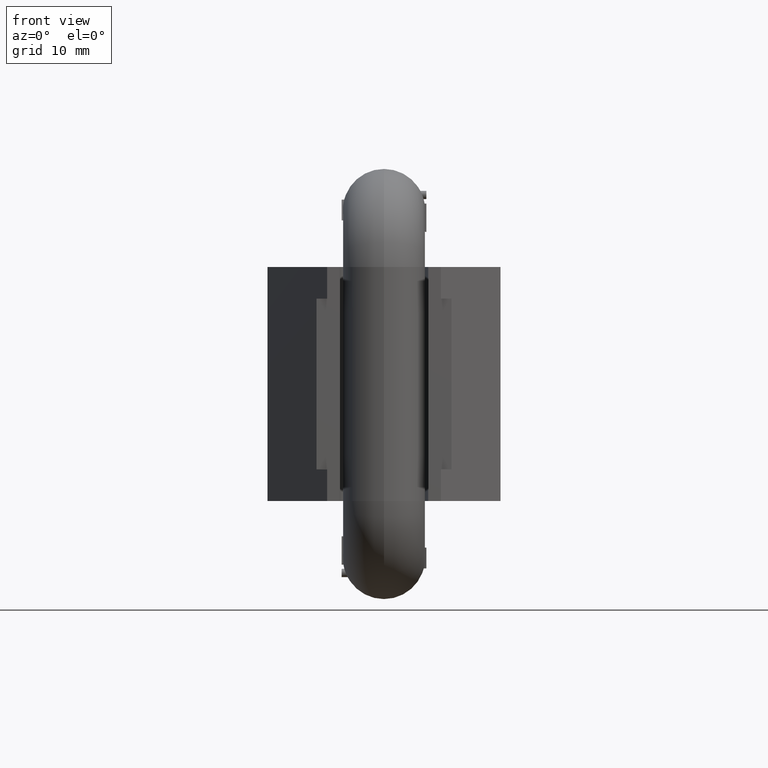
[diagram: clean part render]
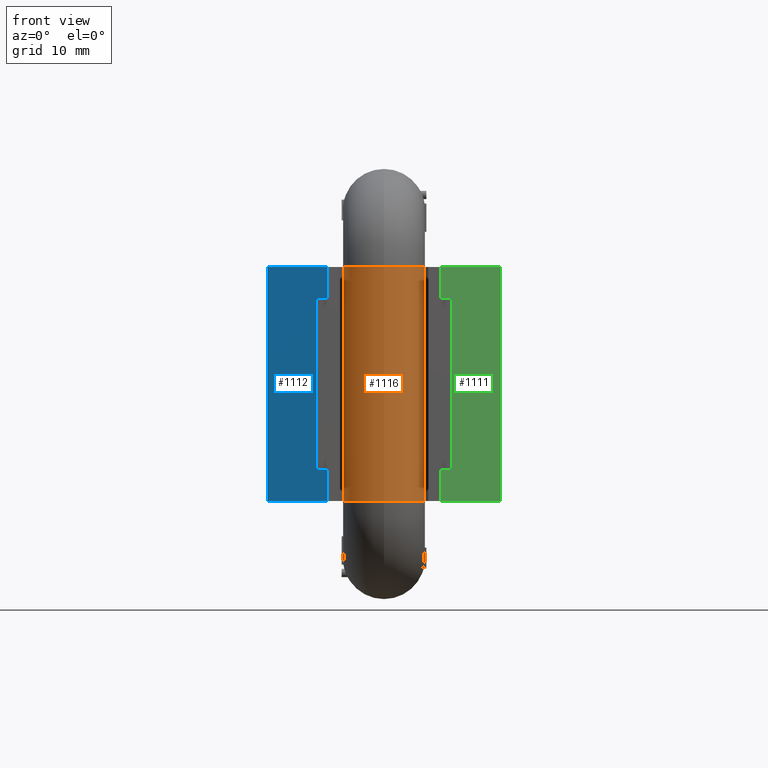
[diagram: same view with three faces highlighted in distinct colors, each labeled with its STEP entity id]
A machine part, front view with three faces highlighted in distinct colors.
Their STEP definitions:

[orange] entity #1116 — the highlighted cylindrical surface (bore or boss wall) has radius 6.5 mm, axis along (0, 0, 1).
#849=FACE_BOUND('',#1872,.T.);
#850=FACE_BOUND('',#1873,.T.);
#1116=ADVANCED_FACE('',(#849,#850),#1461,.T.);
#1461=CYLINDRICAL_SURFACE('',#6832,6.5);
#1872=EDGE_LOOP('',(#2656));
#1873=EDGE_LOOP('',(#2657));
#2276=CIRCLE('',#6829,6.5);
#2277=CIRCLE('',#6831,6.5);
#2656=ORIENTED_EDGE('',*,*,#5141,.T.);
#2657=ORIENTED_EDGE('',*,*,#5140,.F.);
#4486=VERTEX_POINT('',#10621);
#4487=VERTEX_POINT('',#10624);
#5140=EDGE_CURVE('',#4486,#4486,#2276,.T.);
#5141=EDGE_CURVE('',#4487,#4487,#2277,.T.);
#6829=AXIS2_PLACEMENT_3D('',#10620,#7357,#7358);
#6831=AXIS2_PLACEMENT_3D('',#10623,#7361,#7362);
#6832=AXIS2_PLACEMENT_3D('',#10625,#7363,#7364);
#7357=DIRECTION('',(0.,-2.74565219054357E-15,1.));
#7358=DIRECTION('',(0.,-1.,-2.66880534765663E-15));
#7361=DIRECTION('',(0.,-2.74565219054357E-15,1.));
#7362=DIRECTION('',(0.,-1.,-2.66880534765663E-15));
#7363=DIRECTION('',(0.,0.,1.));
#7364=DIRECTION('',(1.,0.,0.));
#10620=CARTESIAN_POINT('',(0.,9.5,18.5));
#10621=CARTESIAN_POINT('',(0.,3.,18.5));
#10623=CARTESIAN_POINT('',(0.,9.5,-18.5));
#10624=CARTESIAN_POINT('',(0.,3.,-18.5));
#10625=CARTESIAN_POINT('',(0.,9.5,-18.5));

[blue] entity #1112 — the highlighted planar face has unit normal (-0.766, -0.6428, 0).
#918=PLANE('',#6742);
#1112=ADVANCED_FACE('',(#1493),#918,.T.);
#1493=FACE_OUTER_BOUND('',#1835,.T.);
#1835=EDGE_LOOP('',(#2374,#2375,#2376,#2377,#2378,#2379,#2380,#2381));
#2374=ORIENTED_EDGE('',*,*,#4824,.T.);
#2375=ORIENTED_EDGE('',*,*,#4820,.T.);
#2376=ORIENTED_EDGE('',*,*,#4832,.F.);
#2377=ORIENTED_EDGE('',*,*,#4862,.F.);
#2378=ORIENTED_EDGE('',*,*,#4845,.F.);
#2379=ORIENTED_EDGE('',*,*,#4839,.F.);
#2380=ORIENTED_EDGE('',*,*,#4842,.T.);
#2381=ORIENTED_EDGE('',*,*,#4864,.F.);
#4182=VERTEX_POINT('',#8211);
#4183=VERTEX_POINT('',#8212);
#4186=VERTEX_POINT('',#8220);
#4192=VERTEX_POINT('',#8234);
#4198=VERTEX_POINT('',#8248);
#4200=VERTEX_POINT('',#8251);
#4202=VERTEX_POINT('',#8257);
#4204=VERTEX_POINT('',#8263);
#4820=EDGE_CURVE('',#4182,#4183,#5768,.T.);
#4824=EDGE_CURVE('',#4186,#4182,#5770,.T.);
#4832=EDGE_CURVE('',#4192,#4183,#5777,.T.);
#4839=EDGE_CURVE('',#4198,#4200,#5783,.T.);
#4842=EDGE_CURVE('',#4198,#4202,#5786,.T.);
#4845=EDGE_CURVE('',#4200,#4204,#5789,.T.);
#4862=EDGE_CURVE('',#4204,#4192,#5806,.T.);
#4864=EDGE_CURVE('',#4186,#4202,#5808,.T.);
#5768=LINE('',#8210,#6170);
#5770=LINE('',#8219,#6172);
#5777=LINE('',#8236,#6179);
#5783=LINE('',#8250,#6185);
#5786=LINE('',#8256,#6188);
#5789=LINE('',#8262,#6191);
#5806=LINE('',#8295,#6208);
#5808=LINE('',#8298,#6210);
#6170=VECTOR('',#7035,1.);
#6172=VECTOR('',#7043,1.);
#6179=VECTOR('',#7054,1.);
#6185=VECTOR('',#7064,1.);
#6188=VECTOR('',#7069,1.);
#6191=VECTOR('',#7074,1.);
#6208=VECTOR('',#7103,1.);
#6210=VECTOR('',#7107,1.);
#6742=AXIS2_PLACEMENT_3D('',#8307,#7121,#7122);
#7035=DIRECTION('',(0.,0.,-1.));
#7043=DIRECTION('',(-0.642787609686539,0.766044443118978,0.));
#7054=DIRECTION('',(-0.642787609686539,0.766044443118978,0.));
#7064=DIRECTION('',(0.,0.,-1.));
#7069=DIRECTION('',(0.642787609686539,-0.766044443118978,0.));
#7074=DIRECTION('',(0.642787609686539,-0.766044443118978,0.));
#7103=DIRECTION('',(0.,0.,-1.));
#7107=DIRECTION('',(0.,0.,-1.));
#7121=DIRECTION('',(-0.766044443118978,-0.642787609686539,0.));
#7122=DIRECTION('',(0.642787609686539,-0.766044443118978,0.));
#8210=CARTESIAN_POINT('',(-18.4193510447237,11.2255454474555,18.5));
#8211=CARTESIAN_POINT('',(-18.4193510447237,11.2255454474555,18.5));
#8212=CARTESIAN_POINT('',(-18.4193510447237,11.2255454474555,-18.5));
#8219=CARTESIAN_POINT('',(-9.95925362630917,1.14319395536298,18.5));
#8220=CARTESIAN_POINT('',(-9.,-8.88178419700125E-16,18.5));
#8234=CARTESIAN_POINT('',(-9.,-8.88178419700125E-16,-18.5));
#8236=CARTESIAN_POINT('',(-9.95925362630917,1.14319395536298,-18.5));
#8248=CARTESIAN_POINT('',(-10.6781992623546,1.99999999999999,13.5));
#8250=CARTESIAN_POINT('',(-10.6781992623546,1.99999999999999,13.5));
#8251=CARTESIAN_POINT('',(-10.6781992623546,1.99999999999999,-13.5));
#8256=CARTESIAN_POINT('',(-5.28141679950119,-4.43163488855494,13.5));
#8257=CARTESIAN_POINT('',(-9.,-8.88178419700125E-16,13.5));
#8262=CARTESIAN_POINT('',(-5.28141679950119,-4.43163488855494,-13.5));
#8263=CARTESIAN_POINT('',(-9.00000000000001,1.29794577179764E-15,-13.5));
#8295=CARTESIAN_POINT('',(-9.,-8.88178419700125E-16,20.3500275));
#8298=CARTESIAN_POINT('',(-9.,-8.88178419700125E-16,20.3500275));
#8307=CARTESIAN_POINT('',(-9.,0.,20.3500275));

[green] entity #1111 — the highlighted planar face has unit normal (0.766, -0.6428, 0).
#917=PLANE('',#6741);
#1111=ADVANCED_FACE('',(#1492),#917,.T.);
#1492=FACE_OUTER_BOUND('',#1834,.T.);
#1834=EDGE_LOOP('',(#2366,#2367,#2368,#2369,#2370,#2371,#2372,#2373));
#2366=ORIENTED_EDGE('',*,*,#4830,.T.);
#2367=ORIENTED_EDGE('',*,*,#4851,.T.);
#2368=ORIENTED_EDGE('',*,*,#4857,.T.);
#2369=ORIENTED_EDGE('',*,*,#4860,.F.);
#2370=ORIENTED_EDGE('',*,*,#4854,.F.);
#2371=ORIENTED_EDGE('',*,*,#4848,.T.);
#2372=ORIENTED_EDGE('',*,*,#4833,.F.);
#2373=ORIENTED_EDGE('',*,*,#4822,.T.);
#4184=VERTEX_POINT('',#8214);
#4185=VERTEX_POINT('',#8216);
#4191=VERTEX_POINT('',#8230);
#4194=VERTEX_POINT('',#8238);
#4206=VERTEX_POINT('',#8269);
#4208=VERTEX_POINT('',#8275);
#4210=VERTEX_POINT('',#8281);
#4212=VERTEX_POINT('',#8287);
#4822=EDGE_CURVE('',#4185,#4184,#5769,.T.);
#4830=EDGE_CURVE('',#4184,#4191,#5775,.T.);
#4833=EDGE_CURVE('',#4185,#4194,#5778,.T.);
#4848=EDGE_CURVE('',#4206,#4194,#5792,.T.);
#4851=EDGE_CURVE('',#4191,#4208,#5795,.T.);
#4854=EDGE_CURVE('',#4206,#4210,#5798,.T.);
#4857=EDGE_CURVE('',#4208,#4212,#5801,.T.);
#4860=EDGE_CURVE('',#4210,#4212,#5804,.T.);
#5769=LINE('',#8215,#6171);
#5775=LINE('',#8231,#6177);
#5778=LINE('',#8237,#6180);
#5792=LINE('',#8268,#6194);
#5795=LINE('',#8274,#6197);
#5798=LINE('',#8280,#6200);
#5801=LINE('',#8286,#6203);
#5804=LINE('',#8292,#6206);
#6171=VECTOR('',#7038,1.);
#6177=VECTOR('',#7050,1.);
#6180=VECTOR('',#7055,1.);
#6194=VECTOR('',#7079,1.);
#6197=VECTOR('',#7084,1.);
#6200=VECTOR('',#7089,1.);
#6203=VECTOR('',#7094,1.);
#6206=VECTOR('',#7099,1.);
#6741=AXIS2_PLACEMENT_3D('',#8306,#7119,#7120);
#7038=DIRECTION('',(0.,0.,1.));
#7050=DIRECTION('',(-0.642787609686539,-0.766044443118978,0.));
#7055=DIRECTION('',(-0.642787609686539,-0.766044443118978,0.));
#7079=DIRECTION('',(0.,0.,-1.));
#7084=DIRECTION('',(0.,0.,-1.));
#7089=DIRECTION('',(0.642787609686539,0.766044443118978,0.));
#7094=DIRECTION('',(0.642787609686539,0.766044443118978,0.));
#7099=DIRECTION('',(0.,0.,1.));
#7119=DIRECTION('',(0.766044443118978,-0.642787609686539,0.));
#7120=DIRECTION('',(0.642787609686539,0.766044443118978,0.));
#8214=CARTESIAN_POINT('',(18.4193510447237,11.2255454474555,18.5));
#8215=CARTESIAN_POINT('',(18.4193510447237,11.2255454474555,18.5));
#8216=CARTESIAN_POINT('',(18.4193510447237,11.2255454474555,-18.5));
#8230=CARTESIAN_POINT('',(9.,-8.88178419700125E-16,18.5));
#8231=CARTESIAN_POINT('',(9.95925362630917,1.14319395536298,18.5));
#8237=CARTESIAN_POINT('',(9.95925362630917,1.14319395536298,-18.5));
#8238=CARTESIAN_POINT('',(9.,-8.88178419700125E-16,-18.5));
#8268=CARTESIAN_POINT('',(9.,-8.88178419700125E-16,20.3500275));
#8269=CARTESIAN_POINT('',(9.,-8.88178419700125E-16,-13.5));
#8274=CARTESIAN_POINT('',(9.,-8.88178419700125E-16,20.3500275));
#8275=CARTESIAN_POINT('',(9.,-8.88178419700125E-16,13.5));
#8280=CARTESIAN_POINT('',(5.28141679950119,-4.43163488855494,-13.5));
#8281=CARTESIAN_POINT('',(10.6781992623546,2.,-13.5));
#8286=CARTESIAN_POINT('',(5.28141679950119,-4.43163488855494,13.5));
#8287=CARTESIAN_POINT('',(10.6781992623546,2.,13.5));
#8292=CARTESIAN_POINT('',(10.6781992623546,2.,13.5));
#8306=CARTESIAN_POINT('',(18.5,11.321659129645,20.3500275));